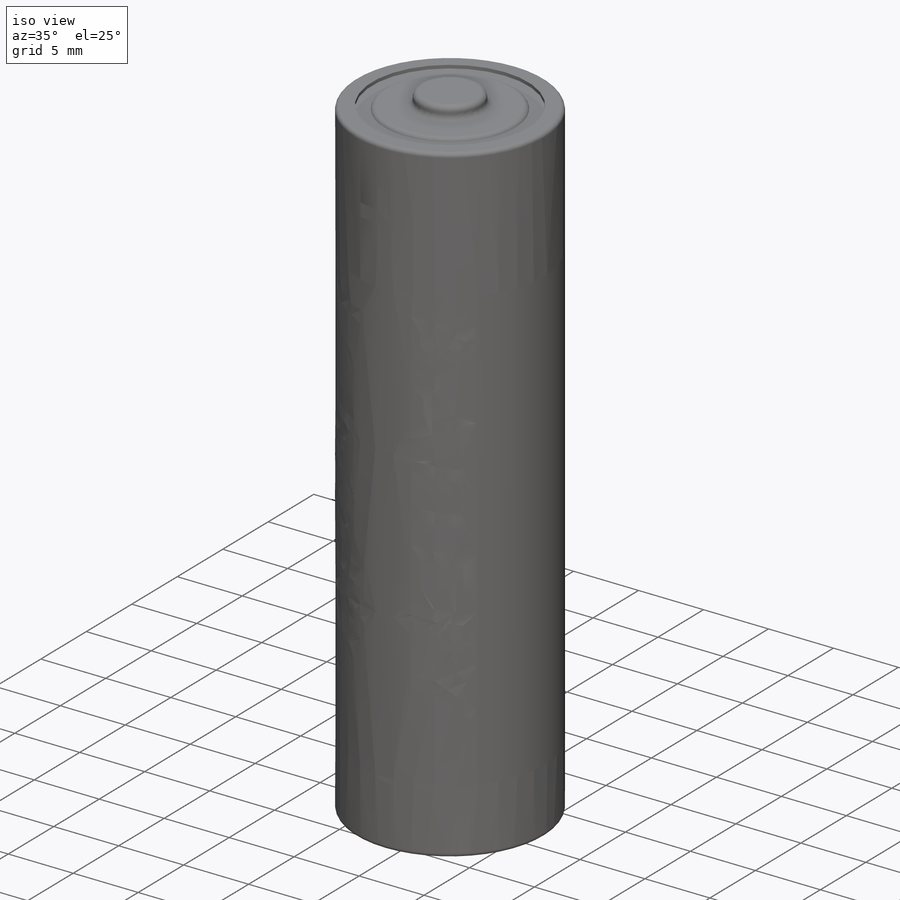
[diagram: iso view]
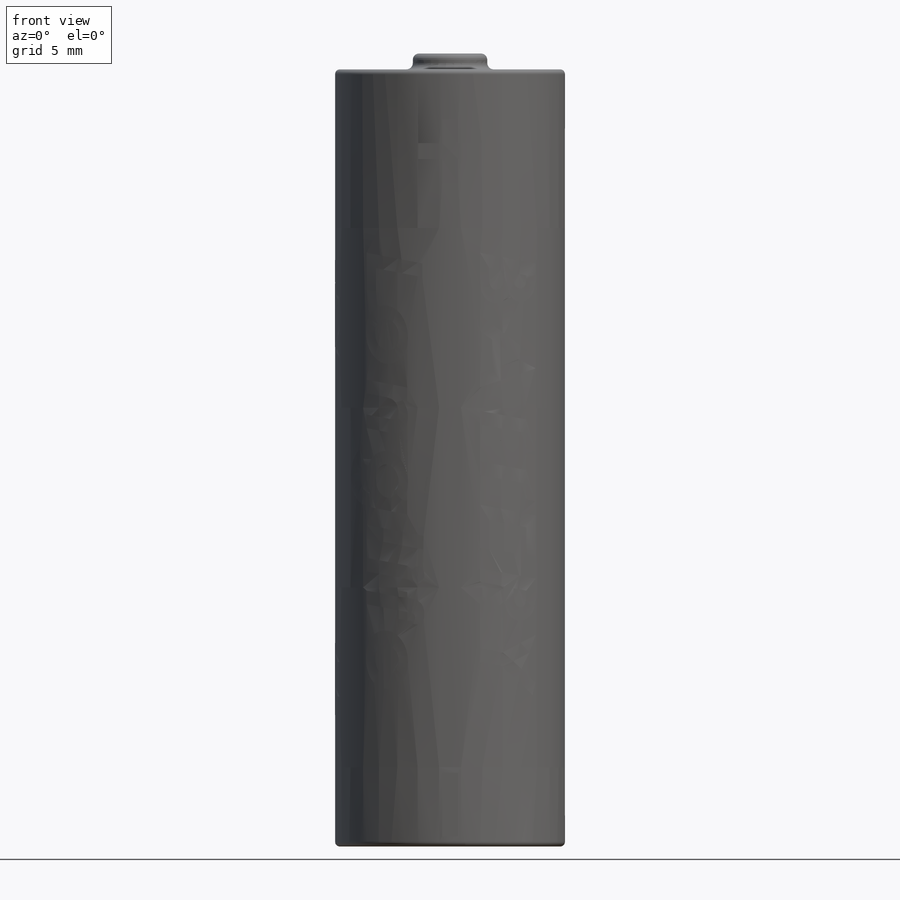
[diagram: front view]
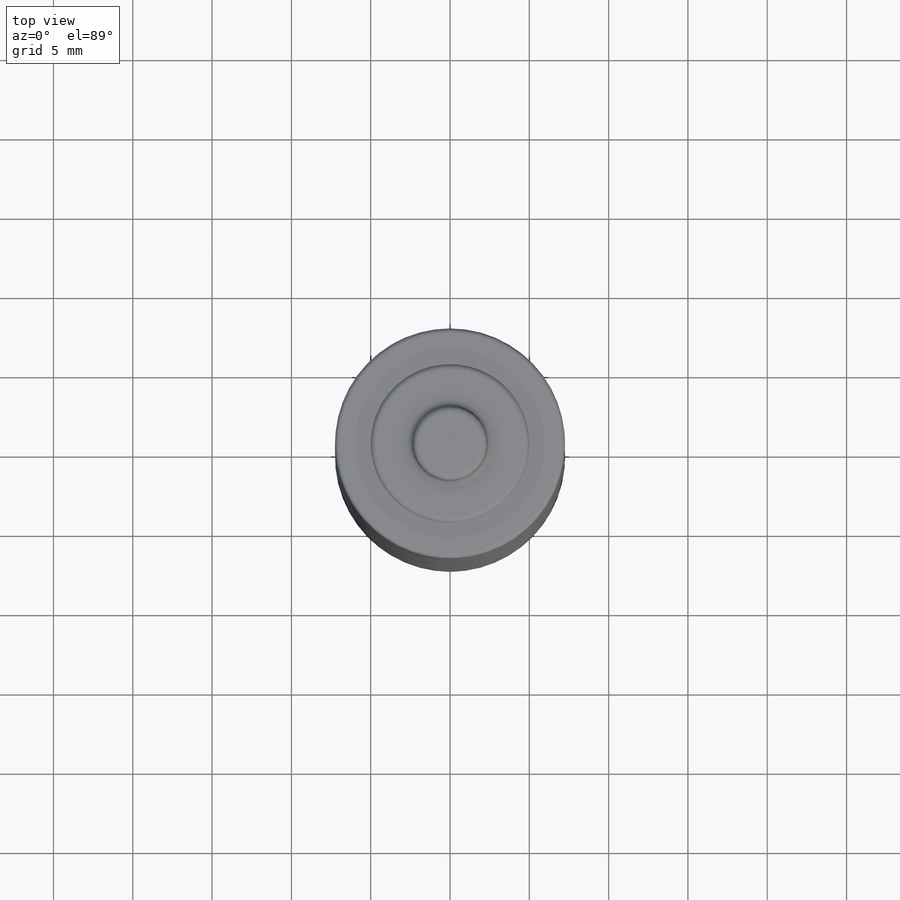
[diagram: top view]
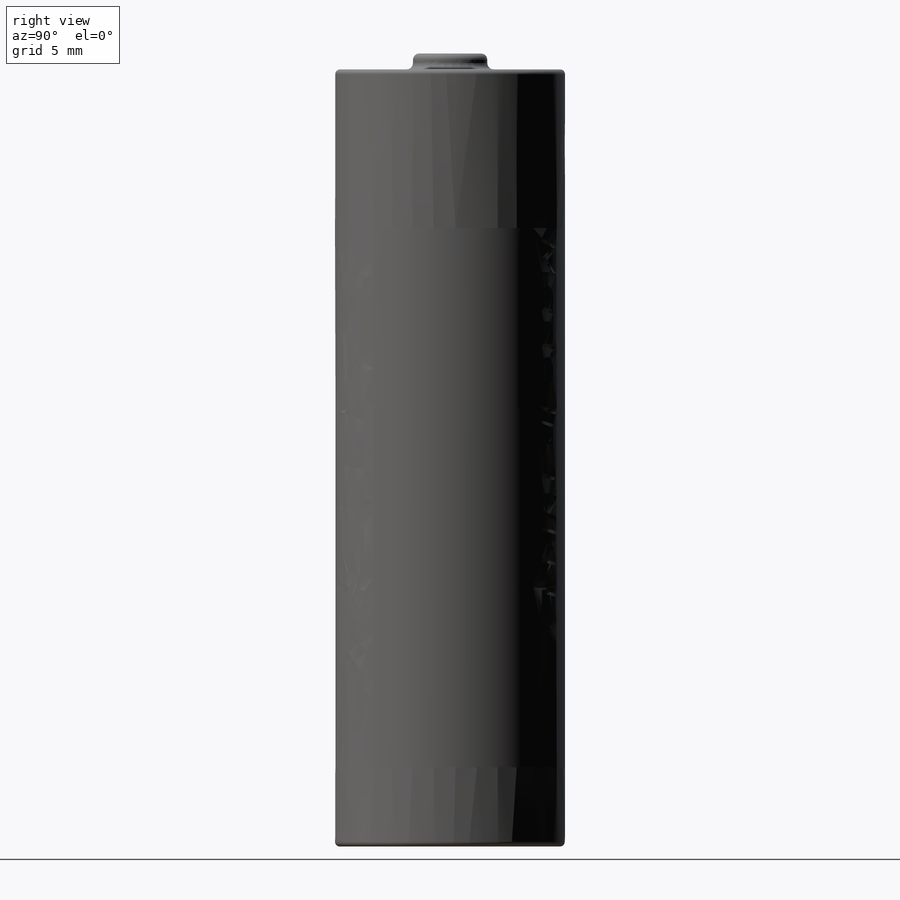
[diagram: right view]
SOLIDWORKS PART (.sldprt)
format: sldprt  version: not decoded by parser v0  size: 975,360 bytes
history: native  units: mm
features: sketch x9, fillet x6, plane x3, revolve x3, material x1, cut_extrude x1 (+9 scaffold rows collapsed)
feature tree (32):
  scaffold x9  (default folders/planes/origin — collapsed)
  material  "Material <not specified>"
  plane  "Ön Düzlem"
  plane  "Üst Düzlem"
  plane  "Sağ Düzlem"
  sketch  "Çizim1"  dims[D1=50.0mm D2=14.5mm D3=4.7mm D4=1.0mm D5=0.5mm D6=12.0mm]
  revolve  "Döndür1"  Angle=360deg
  fillet  "Radyus1"  Radius=0.3mm
  sketch  "Çizim2"  dims[c1.D1=~9.028547mm c1.D2=10.5mm c1.D3=~4.36914mm c1.D4=6.0mm c2.D1=0.3mm c2.D3=0.3mm]
  cut_extrude  "Kes-Ekstrüzyon1"  Depth=0.2mm
  revolve  "Radyus2"  [1 undecoded]
  sketch  "Çizim3"  dims[c1.D1=10.0mm c1.D2=1.0mm c1.Kes-Ekstrüzyon2=0.0deg c2.D1=0.25mm]
  revolve  "Radyus3"  [1 undecoded]
  sketch  "Çizim4"  dims[c1.D1=~22.790612mm c1.D2=~21.639842mm c2.D1=10.0mm c2.D2=20.0mm c2.D3=~8.111476mm c2.D4=20.0mm c3.D3=5.0mm]
  sketch  "Çizim5"  dims[D1=~35.111206mm]
  fillet  "Ayrım Çizgisi2"  [1 undecoded]
  sketch  "Çizim6"  dims[c1.D1=~7.421344mm c1.D2=~1.259579mm c2.D1=4.0mm c2.D2=1.0mm c2.D3=~0.883895mm c2.D4=~7.264761mm c3.D3=~3.323264mm c3.D4=~0.52152mm c4.D3=4.0mm c4.D4=1.0mm]
  fillet  "Ayrım Çizgisi3"  [1 undecoded]
  sketch  "Çizim7"  dims[D1=~48.733189mm]
  fillet  "Ayrım Çizgisi4"  [1 undecoded]
  sketch  "Çizim8"  dims[D1=~67.508004mm]
  fillet  "Ayrım Çizgisi5"  [1 undecoded]
  sketch  "Çizim9"  dims[c1.D1=0.1mm c1.D2=0.1mm c1.D3=0.1mm c1.D4=0.05mm c1.D5=0.05mm c1.D8=0.5mm c2.D1=~1.271821mm c2.D2=~0.240188mm c3.D1=~0.294855mm c3.D2=~0.184359mm c4.D1=~1.271821mm c4.D2=~0.595115mm c5.D1=~1.09607mm c5.D2=~1.017725mm c5.D5=~4.003987mm c5.D6=~1.150803mm c5.D7=~1.287903mm c5.D8=~6.49042mm c5.D9=~8.724421mm c6.D8=~0.535666mm c6.D1=~1.513903mm c6.D2=~0.25463mm c7.D1=~0.92362mm c7.D2=0.25mm c7.D6=0.1mm c7.D7=0.25mm c8.D1=0.25mm]
  fillet  "Ayrım Çizgisi6"  [1 undecoded]
decode coverage: 12 of 19 modeling features carry decoded parameters
note: ~ marks probable driven/reference dimensions
note: 7 parameter values undecoded
summary: no parameter record found for 7 features
note: suppression state not decoded; provenance and decode notes live in map.json
